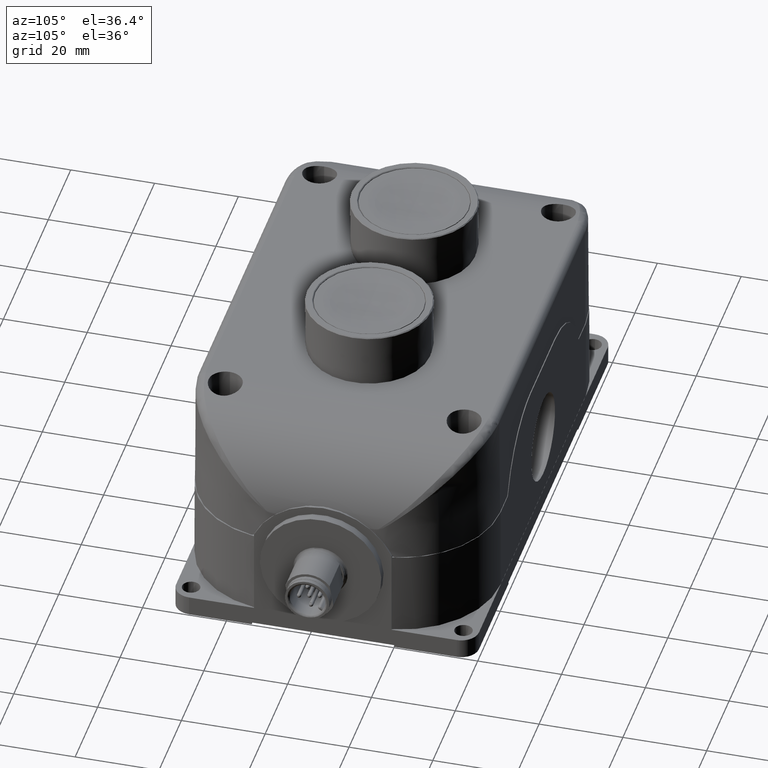
[diagram: clean part render]
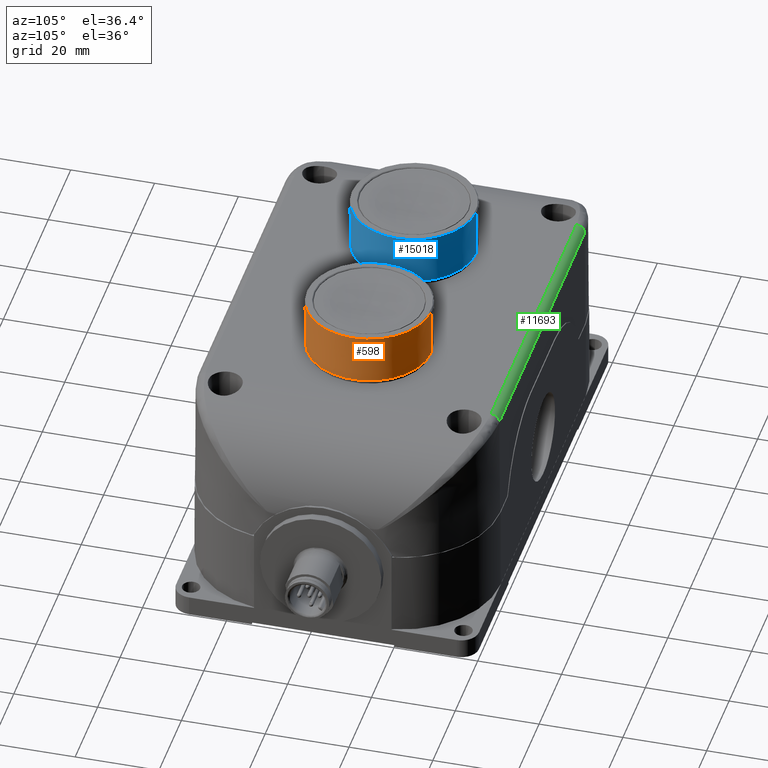
[diagram: same view with three faces highlighted in distinct colors, each labeled with its STEP entity id]
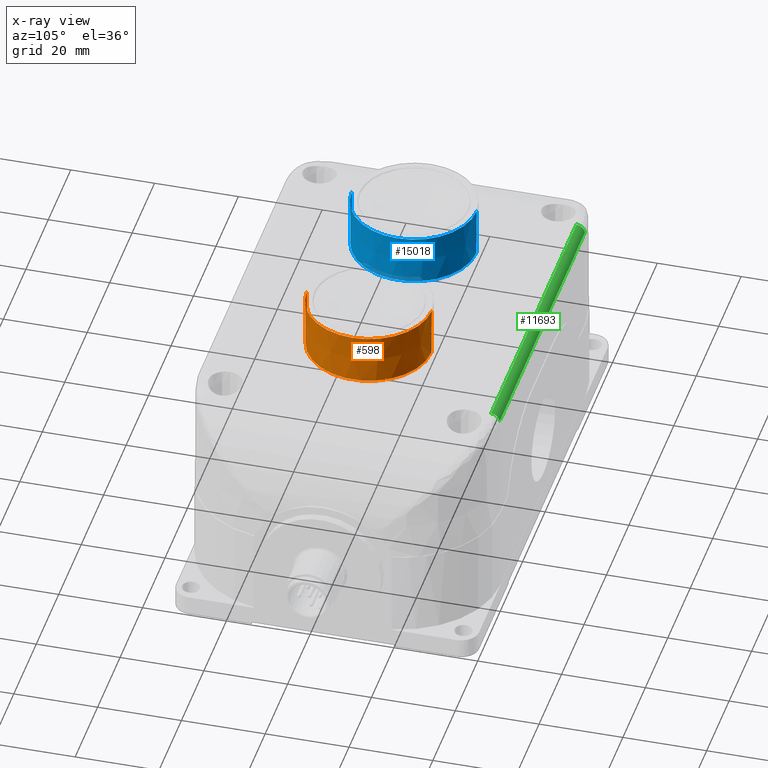
[diagram: x-ray of the same camera — body ghosted, the three highlighted faces saturated]
A machine part, auxiliary view with three faces highlighted in distinct colors.
The next image is the same camera in x-ray (body ghosted, the three faces saturated) — at least one of them is partly hidden behind the body in this view.
Their STEP definitions:

[orange] entity #598 — the highlighted conical surface has half-angle 0.5 deg.
#10 = DIRECTION ( 'NONE',  ( -1.164380332955012001E-16, 1.746570499432519850E-16, 1.000000000000000000 ) ) ;
#257 = CARTESIAN_POINT ( 'NONE',  ( 3.208661417322829390, -1.423117759614840772, 2.610236520290830864 ) ) ;
#598 = ADVANCED_FACE ( 'NONE', ( #1713 ), #9839, .T. ) ;
#729 = ORIENTED_EDGE ( 'NONE', *, *, #6183, .T. ) ;
#934 = EDGE_LOOP ( 'NONE', ( #11459, #5318, #729, #17251, #16293 ) ) ;
#1083 = EDGE_CURVE ( 'NONE', #4375, #2123, #15563, .T. ) ;
#1713 = FACE_OUTER_BOUND ( 'NONE', #934, .T. ) ;
#2123 = VERTEX_POINT ( 'NONE', #17704 ) ;
#3518 = CARTESIAN_POINT ( 'NONE',  ( 3.208661417322829390, -0.8365722992644271105, 2.610236520290830864 ) ) ;
#4011 = DIRECTION ( 'NONE',  ( -1.863008532728019990E-15, -1.000000000000000000, -7.452034130912079961E-15 ) ) ;
#4375 = VERTEX_POINT ( 'NONE', #23200 ) ;
#5117 = AXIS2_PLACEMENT_3D ( 'NONE', #18414, #22407, #16591 ) ;
#5236 = DIRECTION ( 'NONE',  ( -1.153649073154061478E-16, 0.008726535498376599212, 0.9999619230641711987 ) ) ;
#5318 = ORIENTED_EDGE ( 'NONE', *, *, #10890, .T. ) ;
#5968 = AXIS2_PLACEMENT_3D ( 'NONE', #257, #10, #18669 ) ;
#6183 = EDGE_CURVE ( 'NONE', #22831, #19317, #21376, .T. ) ;
#8192 = LINE ( 'NONE', #10241, #19653 ) ;
#9839 = CONICAL_SURFACE ( 'NONE', #5968, 0.5865454603504136610, 0.008726646259974137065 ) ;
#9960 = VERTEX_POINT ( 'NONE', #21840 ) ;
#10241 = CARTESIAN_POINT ( 'NONE',  ( 3.208661417322829390, -2.009663219965254655, 2.610236520290830864 ) ) ;
#10576 = DIRECTION ( 'NONE',  ( 0.000000000000000000, -1.000000000000000000, -7.452034130912079961E-15 ) ) ;
#10890 = EDGE_CURVE ( 'NONE', #2123, #22831, #21843, .T. ) ;
#11410 = AXIS2_PLACEMENT_3D ( 'NONE', #22204, #20498, #4011 ) ;
#11459 = ORIENTED_EDGE ( 'NONE', *, *, #1083, .T. ) ;
#12983 = CARTESIAN_POINT ( 'NONE',  ( 3.795206877673240609, -1.423117759614840994, 2.610236520290834861 ) ) ;
#14001 = AXIS2_PLACEMENT_3D ( 'NONE', #14236, #14586, #10576 ) ;
#14236 = CARTESIAN_POINT ( 'NONE',  ( 3.208661417322829390, -1.423117759614840772, 2.610236520290834861 ) ) ;
#14586 = DIRECTION ( 'NONE',  ( 1.224646799147350002E-16, -1.281858686408449938E-16, -1.000000000000000000 ) ) ;
#15563 = CIRCLE ( 'NONE', #5117, 0.5824225280690117357 ) ;
#15576 = DIRECTION ( 'NONE',  ( -1.164335996919793922E-16, -0.008726535498376248798, 0.9999619230641711987 ) ) ;
#16293 = ORIENTED_EDGE ( 'NONE', *, *, #18733, .F. ) ;
#16591 = DIRECTION ( 'NONE',  ( 0.000000000000000000, -1.000000000000000000, 0.000000000000000000 ) ) ;
#17251 = ORIENTED_EDGE ( 'NONE', *, *, #22119, .T. ) ;
#17704 = CARTESIAN_POINT ( 'NONE',  ( 3.208661417322829390, -0.8406952315458293690, 2.137795275590550936 ) ) ;
#17914 = VECTOR ( 'NONE', #5236, 39.37007874015748143 ) ;
#18414 = CARTESIAN_POINT ( 'NONE',  ( 3.208661417322829390, -1.423117759614840994, 2.137795275590550936 ) ) ;
#18669 = DIRECTION ( 'NONE',  ( 0.000000000000000000, -1.000000000000000000, 0.000000000000000000 ) ) ;
#18733 = EDGE_CURVE ( 'NONE', #4375, #9960, #8192, .T. ) ;
#19317 = VERTEX_POINT ( 'NONE', #12983 ) ;
#19653 = VECTOR ( 'NONE', #15576, 39.37007874015748143 ) ;
#20498 = DIRECTION ( 'NONE',  ( 1.224646799147350002E-16, -1.281858686408449938E-16, -1.000000000000000000 ) ) ;
#21376 = CIRCLE ( 'NONE', #14001, 0.5865454603504136610 ) ;
#21840 = CARTESIAN_POINT ( 'NONE',  ( 3.208661417322829390, -2.009663219965254655, 2.610236520290834861 ) ) ;
#21843 = LINE ( 'NONE', #3518, #17914 ) ;
#21883 = CIRCLE ( 'NONE', #11410, 0.5865454603504136610 ) ;
#22119 = EDGE_CURVE ( 'NONE', #19317, #9960, #21883, .T. ) ;
#22204 = CARTESIAN_POINT ( 'NONE',  ( 3.208661417322829390, -1.423117759614840772, 2.610236520290834861 ) ) ;
#22407 = DIRECTION ( 'NONE',  ( -1.164380332955012001E-16, 1.746570499432519850E-16, 1.000000000000000000 ) ) ;
#22708 = CARTESIAN_POINT ( 'NONE',  ( 3.208661417322829390, -0.8365722992644271105, 2.610236520290834861 ) ) ;
#22831 = VERTEX_POINT ( 'NONE', #22708 ) ;
#23200 = CARTESIAN_POINT ( 'NONE',  ( 3.208661417322829390, -2.005540287683852618, 2.137795275590550936 ) ) ;

[blue] entity #15018 — the highlighted conical surface has half-angle 0.5 deg.
#114 = VERTEX_POINT ( 'NONE', #19355 ) ;
#503 = CARTESIAN_POINT ( 'NONE',  ( 1.633858267716530310, -1.423117759614845657, 2.610236520290830864 ) ) ;
#660 = CIRCLE ( 'NONE', #3753, 0.5865454603504136610 ) ;
#1161 = CARTESIAN_POINT ( 'NONE',  ( 1.633858267716530310, -0.8365722992644319955, 2.610236520290830864 ) ) ;
#1594 = VERTEX_POINT ( 'NONE', #15934 ) ;
#2735 = VERTEX_POINT ( 'NONE', #20545 ) ;
#3014 = ORIENTED_EDGE ( 'NONE', *, *, #18041, .T. ) ;
#3753 = AXIS2_PLACEMENT_3D ( 'NONE', #7276, #14901, #16483 ) ;
#4140 = DIRECTION ( 'NONE',  ( 0.000000000000000000, -1.000000000000000000, 0.000000000000000000 ) ) ;
#4435 = DIRECTION ( 'NONE',  ( -1.164380332955012001E-16, 1.746570499432519850E-16, 1.000000000000000000 ) ) ;
#4662 = LINE ( 'NONE', #1161, #5597 ) ;
#4792 = CIRCLE ( 'NONE', #19886, 0.5865454603504136610 ) ;
#5170 = ORIENTED_EDGE ( 'NONE', *, *, #8430, .T. ) ;
#5597 = VECTOR ( 'NONE', #15462, 39.37007874015748143 ) ;
#6043 = ORIENTED_EDGE ( 'NONE', *, *, #14313, .T. ) ;
#7276 = CARTESIAN_POINT ( 'NONE',  ( 1.633858267716530310, -1.423117759614845657, 2.610236520290834861 ) ) ;
#8085 = CARTESIAN_POINT ( 'NONE',  ( 1.633858267716530310, -1.423117759614845657, 2.137795275590550936 ) ) ;
#8430 = EDGE_CURVE ( 'NONE', #9208, #1594, #4792, .T. ) ;
#8770 = DIRECTION ( 'NONE',  ( -1.164335996919793922E-16, -0.008726535498376248798, 0.9999619230641711987 ) ) ;
#9208 = VERTEX_POINT ( 'NONE', #22599 ) ;
#10578 = CARTESIAN_POINT ( 'NONE',  ( 1.633858267716530310, -1.423117759614845657, 2.610236520290834861 ) ) ;
#12383 = ORIENTED_EDGE ( 'NONE', *, *, #22914, .F. ) ;
#13349 = DIRECTION ( 'NONE',  ( -1.164380332955012001E-16, 1.746570499432519850E-16, 1.000000000000000000 ) ) ;
#13407 = DIRECTION ( 'NONE',  ( 0.000000000000000000, -1.000000000000000000, 0.000000000000000000 ) ) ;
#14313 = EDGE_CURVE ( 'NONE', #2735, #20535, #4662, .T. ) ;
#14901 = DIRECTION ( 'NONE',  ( 1.224646799147350002E-16, -1.281858686408449938E-16, -1.000000000000000000 ) ) ;
#15018 = ADVANCED_FACE ( 'NONE', ( #22795 ), #23026, .T. ) ;
#15262 = CARTESIAN_POINT ( 'NONE',  ( 1.633858267716530310, -0.8365722992644319955, 2.610236520290834861 ) ) ;
#15462 = DIRECTION ( 'NONE',  ( -1.153649073154061478E-16, 0.008726535498376599212, 0.9999619230641711987 ) ) ;
#15934 = CARTESIAN_POINT ( 'NONE',  ( 1.633858267716530310, -2.009663219965259540, 2.610236520290834861 ) ) ;
#16050 = DIRECTION ( 'NONE',  ( 1.224646799147350002E-16, -1.281858686408449938E-16, -1.000000000000000000 ) ) ;
#16483 = DIRECTION ( 'NONE',  ( -1.397256399546015091E-15, -1.000000000000000000, -7.452034130912079961E-15 ) ) ;
#17366 = ORIENTED_EDGE ( 'NONE', *, *, #22619, .T. ) ;
#18041 = EDGE_CURVE ( 'NONE', #20535, #9208, #660, .T. ) ;
#18389 = AXIS2_PLACEMENT_3D ( 'NONE', #8085, #4435, #13407 ) ;
#18405 = VECTOR ( 'NONE', #8770, 39.37007874015748143 ) ;
#18766 = CIRCLE ( 'NONE', #18389, 0.5824225280690117357 ) ;
#19355 = CARTESIAN_POINT ( 'NONE',  ( 1.633858267716530310, -2.005540287683857503, 2.137795275590550936 ) ) ;
#19425 = CARTESIAN_POINT ( 'NONE',  ( 1.633858267716530310, -2.009663219965259540, 2.610236520290830864 ) ) ;
#19886 = AXIS2_PLACEMENT_3D ( 'NONE', #10578, #16050, #23561 ) ;
#20535 = VERTEX_POINT ( 'NONE', #15262 ) ;
#20545 = CARTESIAN_POINT ( 'NONE',  ( 1.633858267716530310, -0.8406952315458340319, 2.137795275590550936 ) ) ;
#20706 = EDGE_LOOP ( 'NONE', ( #17366, #6043, #3014, #5170, #12383 ) ) ;
#21253 = LINE ( 'NONE', #19425, #18405 ) ;
#22263 = AXIS2_PLACEMENT_3D ( 'NONE', #503, #13349, #4140 ) ;
#22599 = CARTESIAN_POINT ( 'NONE',  ( 2.220403728066941085, -1.423117759614845657, 2.610236520290834861 ) ) ;
#22619 = EDGE_CURVE ( 'NONE', #114, #2735, #18766, .T. ) ;
#22795 = FACE_OUTER_BOUND ( 'NONE', #20706, .T. ) ;
#22914 = EDGE_CURVE ( 'NONE', #114, #1594, #21253, .T. ) ;
#23026 = CONICAL_SURFACE ( 'NONE', #22263, 0.5865454603504136610, 0.008726646259974137065 ) ;
#23561 = DIRECTION ( 'NONE',  ( -4.657521331820049976E-16, -1.000000000000000000, -7.452034130912079961E-15 ) ) ;

[green] entity #11693 — the highlighted cylindrical surface (edge-blend (fillet) strip) has radius 2 mm, axis along (-1, -0, -0).
#180 = AXIS2_PLACEMENT_3D ( 'NONE', #3103, #6878, #10484 ) ;
#1580 = CARTESIAN_POINT ( 'NONE',  ( 3.917322834645661001, -0.09049167386452874884, 2.019685039370078261 ) ) ;
#2268 = CARTESIAN_POINT ( 'NONE',  ( 0.9251968503936914834, -0.01175284891511158870, 2.020143128453146364 ) ) ;
#2601 = FACE_OUTER_BOUND ( 'NONE', #12525, .T. ) ;
#3103 = CARTESIAN_POINT ( 'NONE',  ( 0.9251968503936923716, -0.09049167386453857431, 2.019685039370075597 ) ) ;
#3463 = VERTEX_POINT ( 'NONE', #2268 ) ;
#4377 = DIRECTION ( 'NONE',  ( -1.000000000000000000, -0.000000000000000000, -9.172519772171569833E-16 ) ) ;
#4388 = ORIENTED_EDGE ( 'NONE', *, *, #6391, .F. ) ;
#4623 = ORIENTED_EDGE ( 'NONE', *, *, #9644, .T. ) ;
#6391 = EDGE_CURVE ( 'NONE', #19321, #9348, #23153, .T. ) ;
#6559 = EDGE_CURVE ( 'NONE', #19321, #15912, #23300, .T. ) ;
#6878 = DIRECTION ( 'NONE',  ( 1.000000000000000000, 3.277292966922330087E-15, 9.172519772171569833E-16 ) ) ;
#7520 = CIRCLE ( 'NONE', #180, 0.07874015748031495954 ) ;
#8969 = DIRECTION ( 'NONE',  ( -1.000000000000000000, -3.277292966922330087E-15, -9.172519772171569833E-16 ) ) ;
#9129 = EDGE_CURVE ( 'NONE', #3463, #9348, #7520, .T. ) ;
#9187 = CYLINDRICAL_SURFACE ( 'NONE', #14455, 0.07874015748031495954 ) ;
#9348 = VERTEX_POINT ( 'NONE', #11922 ) ;
#9644 = EDGE_CURVE ( 'NONE', #15912, #3463, #16757, .T. ) ;
#10484 = DIRECTION ( 'NONE',  ( 3.469446951953614189E-15, -1.000000000000000000, 0.000000000000000000 ) ) ;
#11577 = DIRECTION ( 'NONE',  ( 0.000000000000000000, -1.000000000000000000, 0.000000000000000000 ) ) ;
#11693 = ADVANCED_FACE ( 'NONE', ( #2601 ), #9187, .T. ) ;
#11922 = CARTESIAN_POINT ( 'NONE',  ( 0.9251968503936923716, -0.09049167386453871309, 2.098425196850390861 ) ) ;
#12525 = EDGE_LOOP ( 'NONE', ( #4388, #18589, #4623, #23310 ) ) ;
#12873 = DIRECTION ( 'NONE',  ( -1.000000000000000000, -3.277292966922330087E-15, -9.172519772171569833E-16 ) ) ;
#13629 = AXIS2_PLACEMENT_3D ( 'NONE', #1580, #8969, #23525 ) ;
#14350 = CARTESIAN_POINT ( 'NONE',  ( 3.917322834645661001, -0.01175284891510120812, 2.020143128453148584 ) ) ;
#14455 = AXIS2_PLACEMENT_3D ( 'NONE', #15340, #20219, #11577 ) ;
#15340 = CARTESIAN_POINT ( 'NONE',  ( 4.606299212598417014, -0.09049167386452641737, 2.019685039370078705 ) ) ;
#15912 = VERTEX_POINT ( 'NONE', #14350 ) ;
#16757 = LINE ( 'NONE', #18816, #18623 ) ;
#17491 = VECTOR ( 'NONE', #4377, 39.37007874015748143 ) ;
#17589 = CARTESIAN_POINT ( 'NONE',  ( 3.070866141732278454, -0.09049167386452655615, 2.098425196850393970 ) ) ;
#18589 = ORIENTED_EDGE ( 'NONE', *, *, #6559, .T. ) ;
#18623 = VECTOR ( 'NONE', #12873, 39.37007874015748143 ) ;
#18816 = CARTESIAN_POINT ( 'NONE',  ( 4.606299212598416126, -0.01175284891509792949, 2.020143128453150361 ) ) ;
#19321 = VERTEX_POINT ( 'NONE', #20384 ) ;
#20219 = DIRECTION ( 'NONE',  ( -1.000000000000000000, -3.277292966922330087E-15, -9.172519772171569833E-16 ) ) ;
#20384 = CARTESIAN_POINT ( 'NONE',  ( 3.917322834645661001, -0.09049167386452697248, 2.098425196850393970 ) ) ;
#23153 = LINE ( 'NONE', #17589, #17491 ) ;
#23300 = CIRCLE ( 'NONE', #13629, 0.07874015748031495954 ) ;
#23310 = ORIENTED_EDGE ( 'NONE', *, *, #9129, .T. ) ;
#23525 = DIRECTION ( 'NONE',  ( 0.000000000000000000, -1.000000000000000000, 0.000000000000000000 ) ) ;